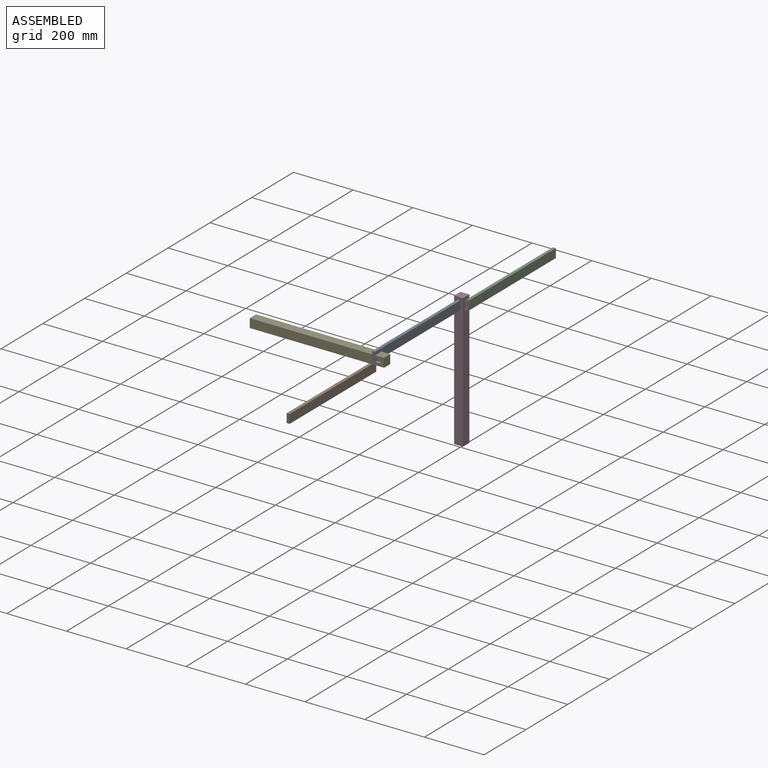
[diagram: assembled view]
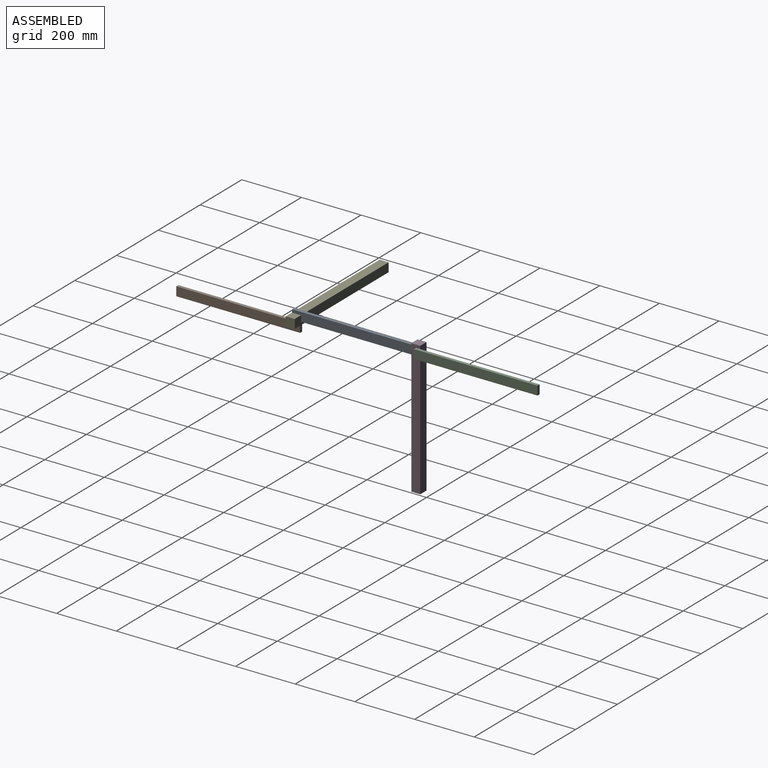
[diagram: assembled view, second angle]
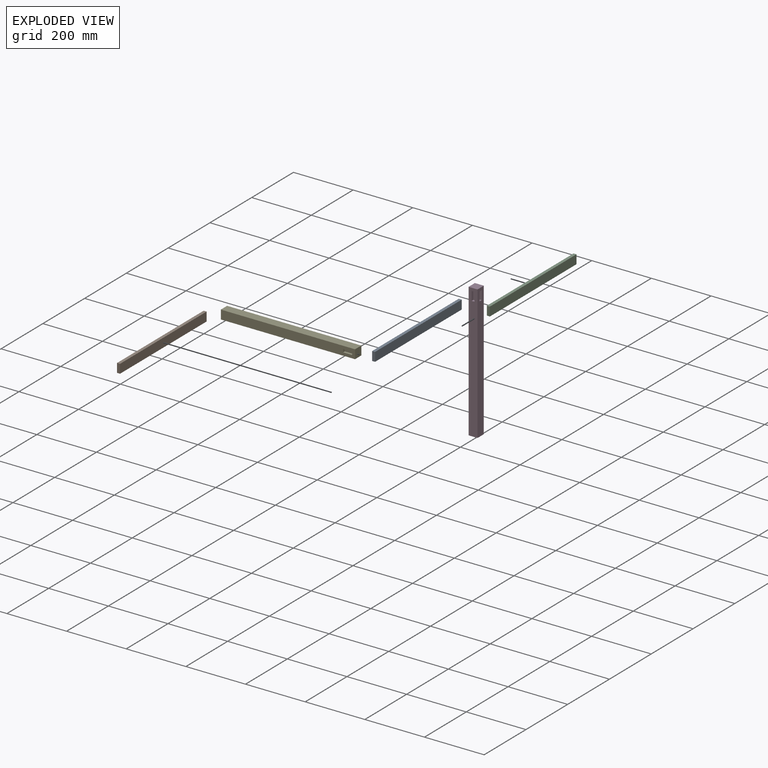
[diagram: exploded view]
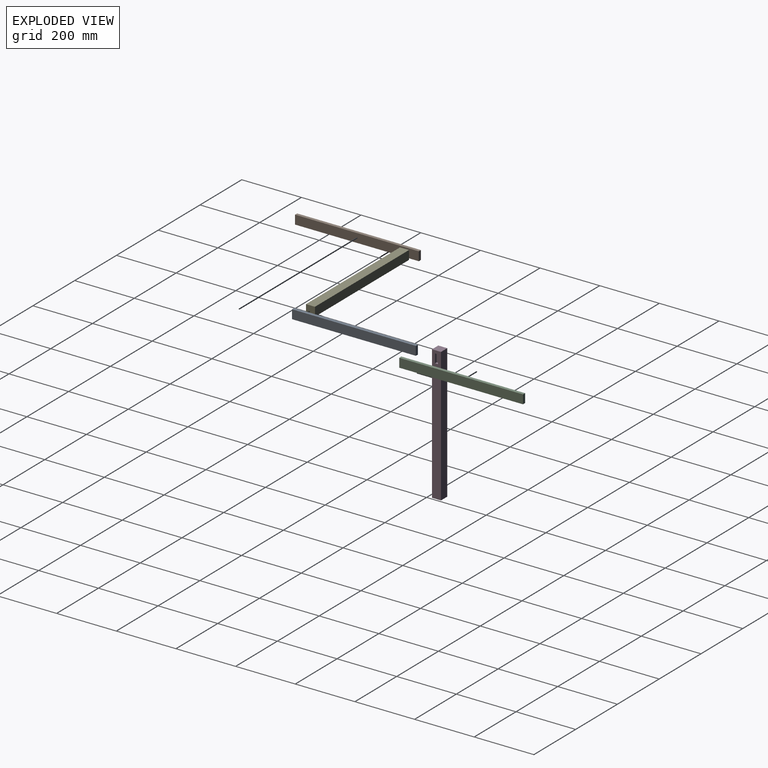
[diagram: exploded view, second angle]
ASSEMBLY  parts=5 mates=4
PART A: 6 faces, bbox 30x415x10 mm
  f0: plane 415x10mm, normal (-1,0,0), area 4150mm2, adj f1,f3,f4,f5
  f1: plane 415x30mm, normal (0,0,-1), area 12450mm2, adj f0,f2,f4,f5
  f2: plane 415x10mm, normal (1,0,0), area 4150mm2, adj f1,f3,f4,f5
  f3: plane 415x30mm, normal (0,0,1), area 12450mm2, adj f0,f2,f4,f5
  f4: plane 30x10mm, normal (0,-1,0), area 300mm2, adj f0,f1,f2,f3
  f5: plane 30x10mm, normal (0,1,0), area 300mm2, adj f0,f1,f2,f3
PART B: same geometry as A
PART C: same geometry as A
PART D: 16 faces, bbox 30x30x450 mm
  f0: plane 450x30mm, normal (0,-1,0), area 13200mm2, adj f1,f2,f4,f5,f11,f12,f13,f14
  f1: plane 450x30mm, normal (1,0,0), area 13200mm2, adj f0,f3,f4,f5,f6,f7,f8,f9
  f2: plane 450x30mm, normal (-1,0,0), area 13500mm2, adj f0,f3,f4,f5
  f3: plane 450x30mm, normal (0,1,0), area 13500mm2, adj f1,f2,f4,f5
  f4: plane 30x30mm, normal (0,0,1), area 900mm2, adj f0,f1,f2,f3
  f5: plane 30x30mm, normal (0,0,-1), area 900mm2, adj f0,f1,f2,f3
  f6: plane 10x8mm, normal (0,0,1), area 80mm2, adj f1,f7,f9,f10
  f7: plane 30x8mm, normal (0,-1,0), area 240mm2, adj f1,f6,f8,f10
  f8: plane 10x8mm, normal (0,0,-1), area 80mm2, adj f1,f7,f9,f10
  f9: plane 30x8mm, normal (0,1,0), area 240mm2, adj f1,f6,f8,f10
  f10: plane 30x10mm, normal (1,0,0), area 300mm2, adj f6,f7,f8,f9
  f11: plane 10x8mm, normal (0,0,1), area 80mm2, adj f0,f12,f14,f15
  f12: plane 30x8mm, normal (-1,0,0), area 240mm2, adj f0,f11,f13,f15
  f13: plane 10x8mm, normal (0,0,-1), area 80mm2, adj f0,f12,f14,f15
  f14: plane 30x8mm, normal (1,0,0), area 240mm2, adj f0,f11,f13,f15
  f15: plane 30x10mm, normal (0,-1,0), area 300mm2, adj f11,f12,f13,f14
PART E: same geometry as D
PLACE A rot(axis=(0.71,0,0.71),180deg) t=(20,-437,410)mm
PLACE B rot(axis=(0,1,0),90deg) t=(10,-417,400)mm
PLACE C rot(axis=(-0.71,0,-0.71),180deg) t=(40,-15,410)mm
PLACE D at identity fixed
PLACE E rot(axis=(0,1,0),90deg) t=(-400,-407,430)mm
MATE fastened E.f11 <-> A.f1  axis (1,0,0) through (10,-437,410)mm
MATE fastened B.f3 <-> E.f6  axis (1,0,0) through (10,-417,400)mm
MATE fastened A.f4 <-> D.f15  axis (0,1,0) through (15,-22,425)mm
MATE fastened C.f1 <-> D.f1  axis (1,0,0) through (30,-15,410)mm
